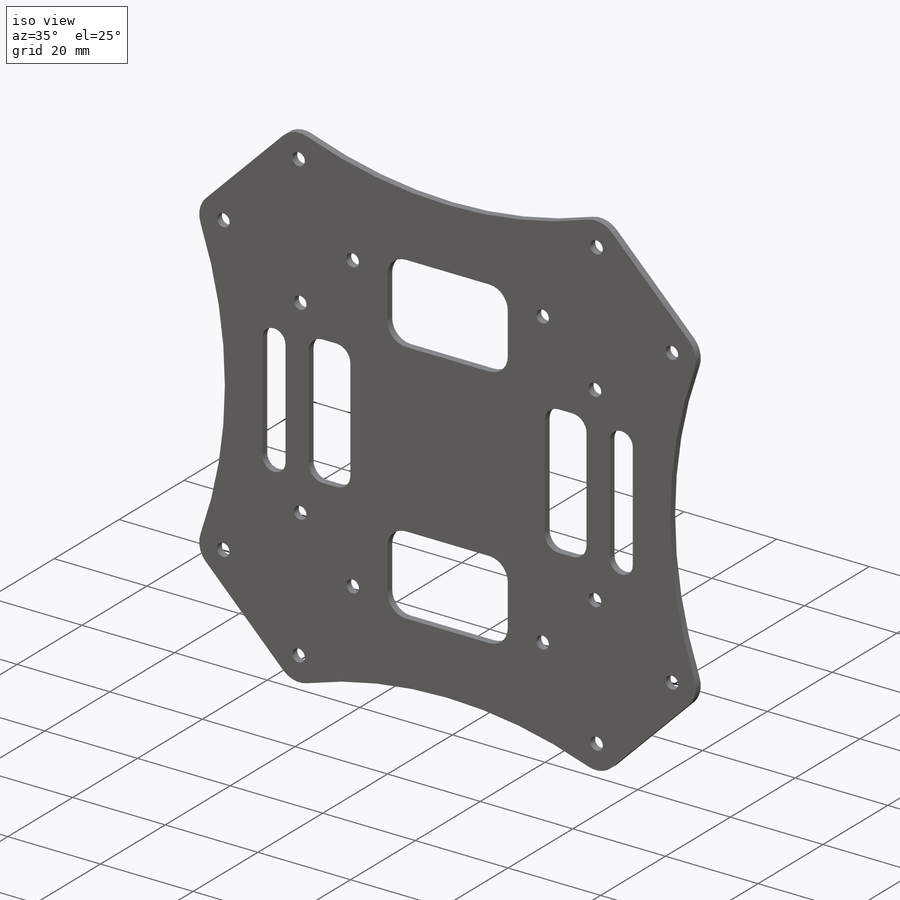
[diagram: iso view]
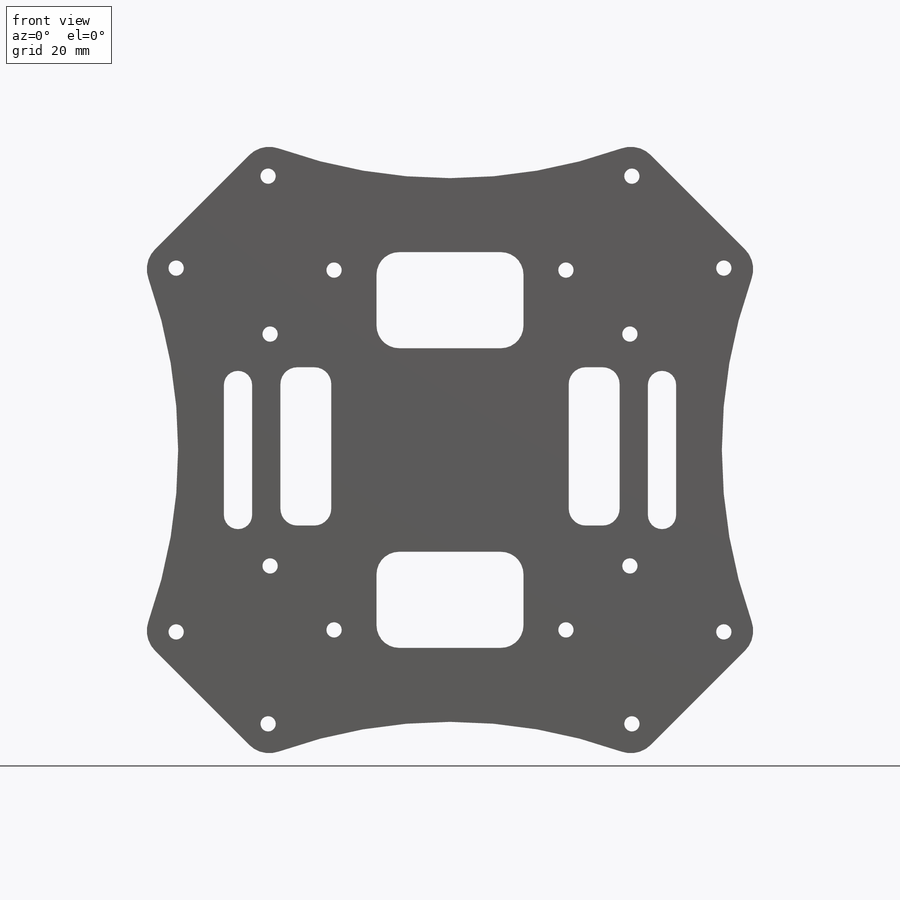
[diagram: front view]
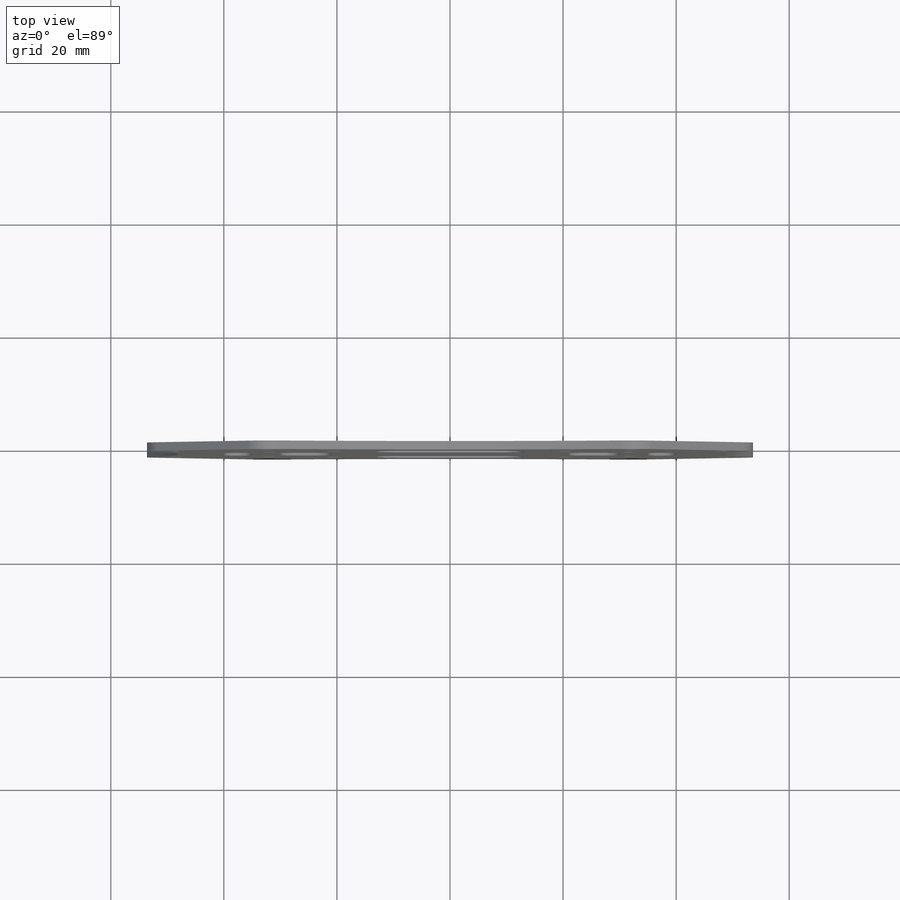
[diagram: top view]
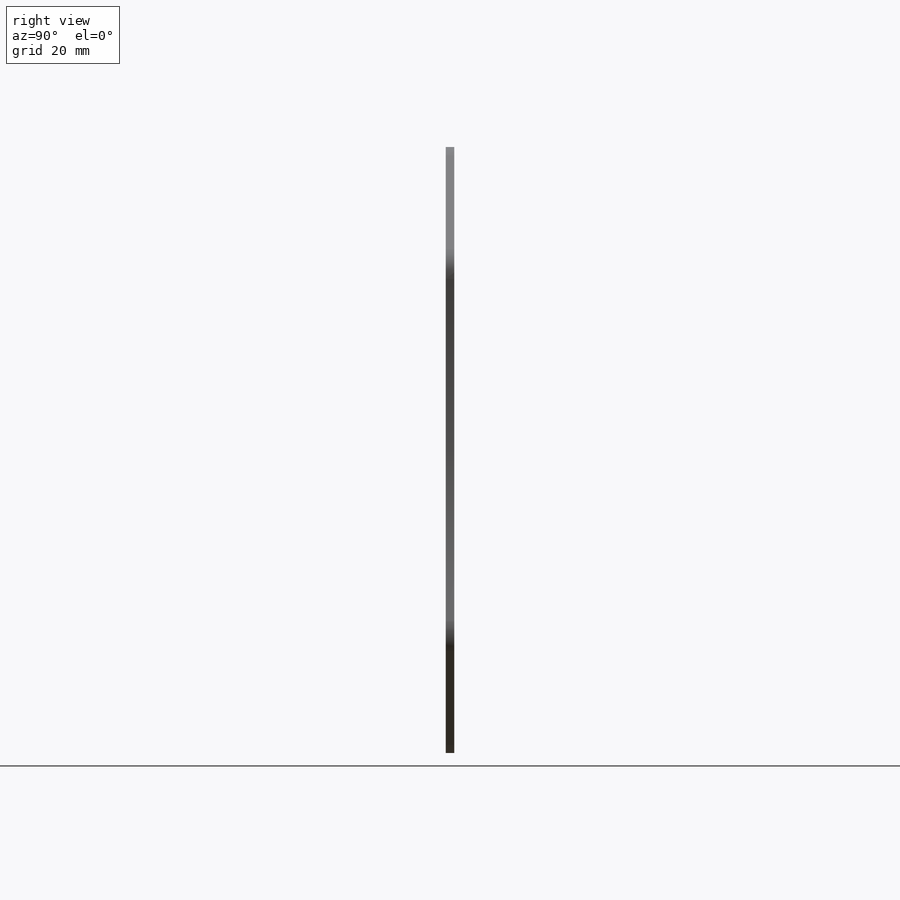
[diagram: right view]
SOLIDWORKS PART (.sldprt)
format: sldprt  version: not decoded by parser v0  size: 592,384 bytes
history: native  units: mm
features: plane x3, sketch x3, fillet x2, material x1, extrude x1 (+9 scaffold rows collapsed)
feature tree (19):
  scaffold x9  (default folders/planes/origin — collapsed)
  material  "Malzeme <belirli değil>"
  plane  "Ön Düzlem"
  plane  "Üst Düzlem"
  plane  "Sağ Düzlem"
  sketch  "Çizim1"  dims[c1.D1=~77.643678mm c1.D2=~133.836139mm c2.D1=4.0mm c2.D2=3.0mm c2.D3=~4.193142mm c3.D1=~40.408459mm c4.D1=90.0deg c4.D2=45.0deg c5.D2=15.0mm c5.D1=26.0mm c6.D2=28.0mm c6.D3=8.0mm]
  extrude  "Yükseklik-Ekstrüzyon1"  Depth=1.5mm
  fillet  "Radyus1"  Radius=5mm
  sketch  "Çizim2"  dims[c1.D1=2.0mm c1.D2=2.0mm c1.D3=2.0mm c2.D2=2.0mm c2.D4=2.0mm c2.D5=2.0mm c3.D4=1.0mm c3.D5=1.0mm c3.D6=1.0mm c3.D7=1.0mm c3.D8=1.0mm c3.D9=1.0mm c3.D10=1.0mm c3.D11=1.0mm c3.D12=1.0mm c3.D13=1.0mm c3.D14=1.0mm c3.D15=1.0mm c3.D16=1.0mm c3.D17=1.0mm c3.D18=1.0mm c3.D19=1.0mm c3.D20=2.0mm c3.D21=2.0mm c3.D22=2.0mm c3.D23=2.0mm c3.D24=2.0mm]
  sketch  "Çizim3"  dims[D1=2.0mm D2=2.0mm D3=2.0mm D4=2.0mm D5=2.0mm D6=2.0mm D7=2.0mm D8=2.0mm D9=1.0mm D10=1.0mm D11=1.0mm D12=1.0mm D13=1.0mm D14=1.0mm D15=1.0mm D16=1.0mm D17=1.0mm D18=1.0mm D19=1.0mm D20=1.0mm D21=1.0mm D22=1.0mm D23=1.0mm D24=1.0mm]
  fillet  "Ayrım Çizgisi2"  [1 undecoded]
decode coverage: 5 of 6 modeling features carry decoded parameters
note: ~ marks probable driven/reference dimensions
note: 1 parameter value undecoded
note: suppression state not decoded; provenance and decode notes live in map.json
